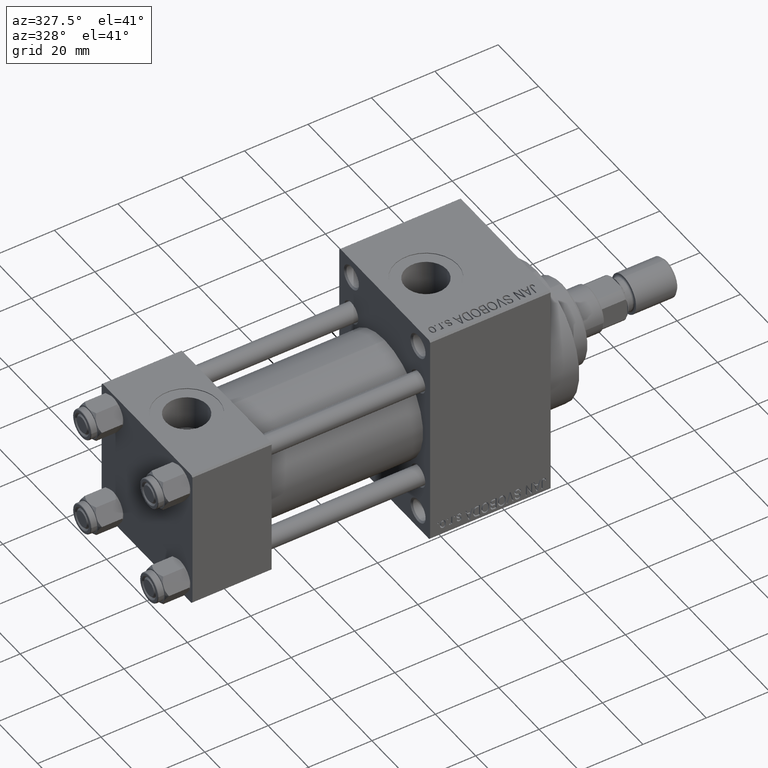
[diagram: clean part render]
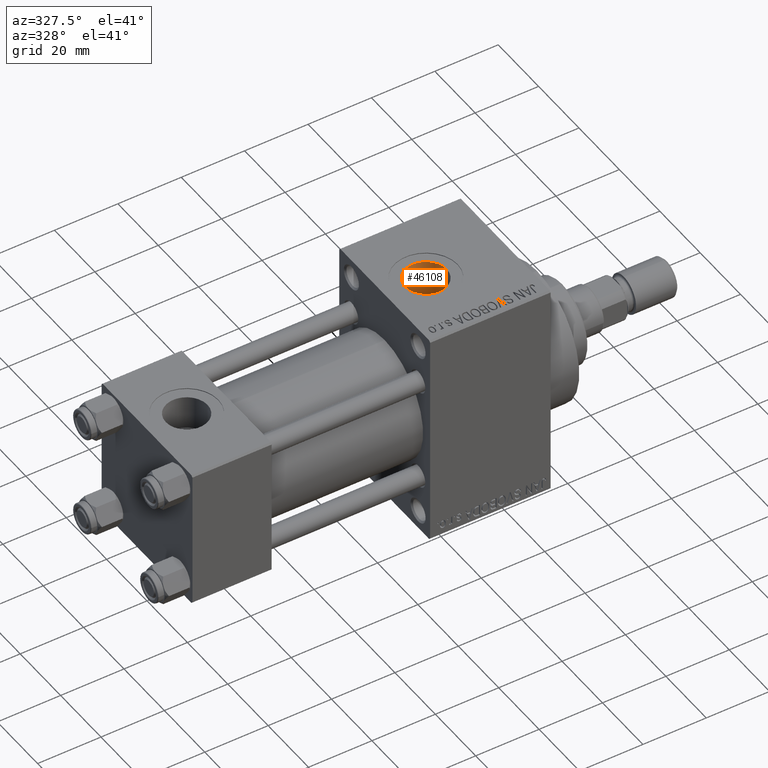
[diagram: same view with one face highlighted and labeled with its STEP entity id]
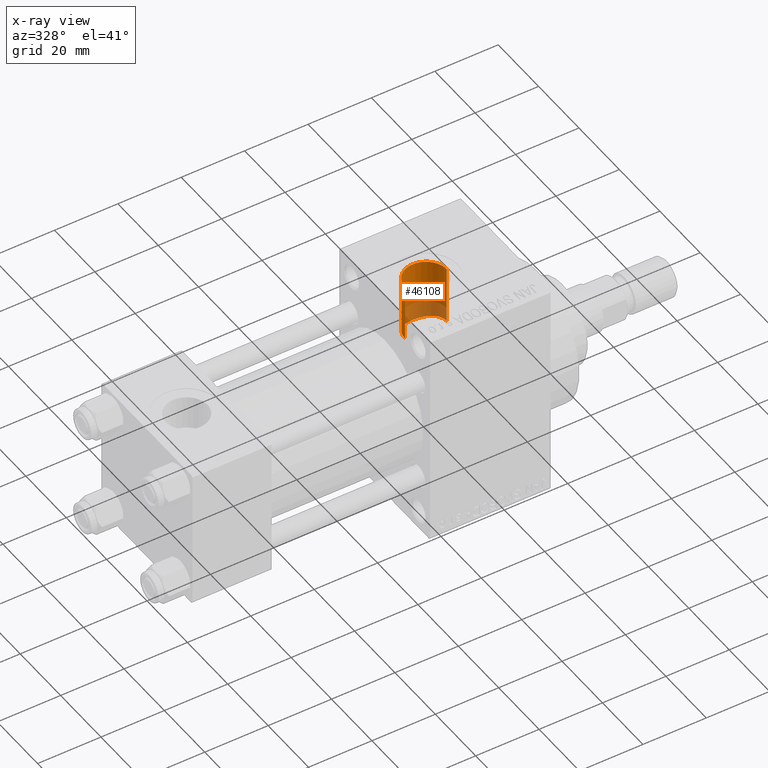
[diagram: x-ray of the same camera — body ghosted, the highlighted face saturated]
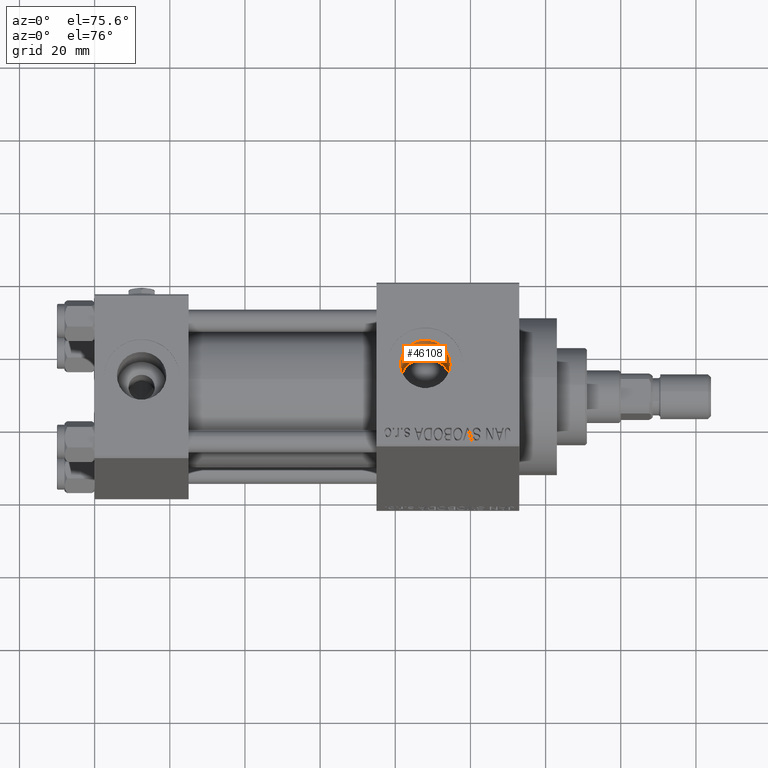
[diagram: same view with one face highlighted and labeled with its STEP entity id]
A machine part, auxiliary view. The second image highlights one B-rep face of the part: STEP entity #46108.
The next image is the same camera in x-ray: the body ghosted, the highlighted face saturated — about 25% of this face is hidden behind the body in this view.
A second angle (auxiliary view) of the same face is appended — the face is thin or edge-on in the first view.
In plain terms, the highlighted cylindrical surface (edge-blend (fillet) strip) has radius 6.58 mm, axis along (0, 0, -1).
Its self-contained STEP definition (entity closure, byte-faithful):
#144 = VERTEX_POINT ( 'NONE', #33753 ) ;
#365 = CARTESIAN_POINT ( 'NONE',  ( 81.42000000000001592, 0.4396909161633379970, 16.50000000000000000 ) ) ;
#1992 = VERTEX_POINT ( 'NONE', #39671 ) ;
#2795 = CARTESIAN_POINT ( 'NONE',  ( 89.71960907533876650, 6.366039094239791751, 15.22274969486490903 ) ) ;
#4271 = ORIENTED_EDGE ( 'NONE', *, *, #33789, .F. ) ;
#4628 = CARTESIAN_POINT ( 'NONE',  ( 86.28000513198898602, 6.354916046140965946, 15.22727006170524255 ) ) ;
#4850 = DIRECTION ( 'NONE',  ( 0.000000000000000000, 0.000000000000000000, -1.000000000000000000 ) ) ;
#4873 = CARTESIAN_POINT ( 'NONE',  ( 88.43041437636243529, 6.580262352372593604, 15.13109868636610500 ) ) ;
#7057 = CARTESIAN_POINT ( 'NONE',  ( 93.58313079595792772, 3.488679297653432876, 16.12799927511962750 ) ) ;
#7765 = CARTESIAN_POINT ( 'NONE',  ( 88.00000000000001421, 0.000000000000000000, 34.80000000000000426 ) ) ;
#8181 = B_SPLINE_CURVE_WITH_KNOTS ( 'NONE', 3,
 ( #43896, #365, #47904, #30961, #27442, #35447, #13579, #27193, #16166, #23436, #35200, #46728, #19688, #34951, #20179, #42738, #38962, #12413, #27697, #4628, #9559, #24849, #23925, #4873, #16425, #2795, #45146, #14341, #18104, #48913, #45388, #21604, #14828, #7057, #10812, #25355, #26102, #11050, #41627, #22349, #44394, #33628 ),
 .UNSPECIFIED., .F., .F.,
 ( 4, 2, 2, 2, 2, 2, 2, 2, 2, 2, 2, 2, 2, 2, 2, 2, 2, 2, 2, 2, 4 ),
 ( 3.029796803742696073E-19, 0.001299415614038050820, 0.001949123421057076446, 0.002598831228076102506, 0.003898246842114153760, 0.004547954649133188927, 0.005197662456152225829, 0.006497078070190324788, 0.007796493684228423746, 0.008446201491247494475, 0.009095909298266561735, 0.01039532491230465983, 0.01169474052634275618, 0.01299415614038085254, 0.01429357175441894889, 0.01559298736845704872, 0.01689240298249514854, 0.01754211078951420019, 0.01819181859653324837, 0.01949123421057134820, 0.02079064982460944802 ),
 .UNSPECIFIED. ) ;
#9115 = CARTESIAN_POINT ( 'NONE',  ( 81.42000000000000171, 0.000000000000000000, 57.80000000000000426 ) ) ;
#9559 = CARTESIAN_POINT ( 'NONE',  ( 86.49295679960938799, 6.408771838949050448, 15.20459785724311885 ) ) ;
#10812 = CARTESIAN_POINT ( 'NONE',  ( 93.69510396014858600, 3.302812843699986622, 16.16721237684453882 ) ) ;
#11050 = CARTESIAN_POINT ( 'NONE',  ( 94.23829621810837409, 2.136280655178052879, 16.36601737438517645 ) ) ;
#12413 = CARTESIAN_POINT ( 'NONE',  ( 85.66352933219012300, 6.154922265468560916, 15.30930375900044282 ) ) ;
#13579 = CARTESIAN_POINT ( 'NONE',  ( 81.84557439800794043, 2.337919464262820046, 16.33476696422907892 ) ) ;
#14341 = CARTESIAN_POINT ( 'NONE',  ( 90.93426117760873240, 5.905515365187742560, 15.40802478163925215 ) ) ;
#14808 = DIRECTION ( 'NONE',  ( -0.000000000000000000, -0.000000000000000000, -1.000000000000000000 ) ) ;
#14828 = CARTESIAN_POINT ( 'NONE',  ( 93.22525777298483263, 4.021991063199714667, 16.00645380239108206 ) ) ;
#16166 = CARTESIAN_POINT ( 'NONE',  ( 82.29741408318915319, 3.310696723657961194, 16.16856813124212522 ) ) ;
#16425 = CARTESIAN_POINT ( 'NONE',  ( 88.87142053474300951, 6.536370198589199099, 15.15039361366212312 ) ) ;
#17156 = ORIENTED_EDGE ( 'NONE', *, *, #20559, .T. ) ;
#17176 = AXIS2_PLACEMENT_3D ( 'NONE', #7765, #14808, #23054 ) ;
#17815 = ORIENTED_EDGE ( 'NONE', *, *, #43109, .T. ) ;
#18104 = CARTESIAN_POINT ( 'NONE',  ( 91.31070466470548297, 5.702406519910367955, 15.48534490959712429 ) ) ;
#18783 = VERTEX_POINT ( 'NONE', #27066 ) ;
#19688 = CARTESIAN_POINT ( 'NONE',  ( 83.19999324840843258, 4.505706642184206245, 15.87365912611482166 ) ) ;
#19958 = AXIS2_PLACEMENT_3D ( 'NONE', #43934, #33422, #44939 ) ;
#20179 = CARTESIAN_POINT ( 'NONE',  ( 83.98013200560863822, 5.227071208038457151, 15.65222595229757019 ) ) ;
#20559 = EDGE_CURVE ( 'NONE', #28134, #1992, #8181, .T. ) ;
#20903 = EDGE_CURVE ( 'NONE', #18783, #1992, #21305, .T. ) ;
#21305 = LINE ( 'NONE', #21792, #30483 ) ;
#21604 = CARTESIAN_POINT ( 'NONE',  ( 92.95548920767288337, 4.349814429347719447, 15.91941246497935047 ) ) ;
#21792 = CARTESIAN_POINT ( 'NONE',  ( 94.58000000000001251, 8.058175938389587461E-16, 57.80000000000000426 ) ) ;
#21897 = CYLINDRICAL_SURFACE ( 'NONE', #19958, 6.580000000000002736 ) ;
#22349 = CARTESIAN_POINT ( 'NONE',  ( 94.53720150358897456, 0.8675057294127678231, 16.48278879358383975 ) ) ;
#23054 = DIRECTION ( 'NONE',  ( 1.000000000000000000, 0.000000000000000000, 0.000000000000000000 ) ) ;
#23436 = CARTESIAN_POINT ( 'NONE',  ( 82.65576624352384272, 3.844673625914531101, 16.04686298822489121 ) ) ;
#23925 = CARTESIAN_POINT ( 'NONE',  ( 87.56160118132955006, 6.579735225464614423, 15.13132791414495237 ) ) ;
#24849 = CARTESIAN_POINT ( 'NONE',  ( 87.13155722799643854, 6.536876158988661700, 15.15017689727745775 ) ) ;
#25355 = CARTESIAN_POINT ( 'NONE',  ( 93.89888682472117409, 2.923339875303694768, 16.24011738541209127 ) ) ;
#26102 = CARTESIAN_POINT ( 'NONE',  ( 93.99096738286496588, 2.729582111438812575, 16.27388817802938803 ) ) ;
#26180 = VECTOR ( 'NONE', #4850, 1000.000000000000000 ) ;
#26642 = ORIENTED_EDGE ( 'NONE', *, *, #20903, .F. ) ;
#27066 = CARTESIAN_POINT ( 'NONE',  ( 94.58000000000001251, 8.058175938389587461E-16, 34.80000000000000426 ) ) ;
#27193 = CARTESIAN_POINT ( 'NONE',  ( 82.09476389677169550, 2.934326875531596102, 16.24197163449460390 ) ) ;
#27442 = CARTESIAN_POINT ( 'NONE',  ( 81.64416665392327843, 1.716703622698513065, 16.41178747553648520 ) ) ;
#27697 = CARTESIAN_POINT ( 'NONE',  ( 85.86569212079474767, 6.228006918448826035, 15.27961522124684812 ) ) ;
#28134 = VERTEX_POINT ( 'NONE', #49498 ) ;
#30483 = VECTOR ( 'NONE', #37070, 1000.000000000000000 ) ;
#30961 = CARTESIAN_POINT ( 'NONE',  ( 81.59120125434554893, 1.506783316627583691, 16.43243046644544592 ) ) ;
#32912 = FACE_OUTER_BOUND ( 'NONE', #42076, .T. ) ;
#33422 = DIRECTION ( 'NONE',  ( 0.000000000000000000, 0.000000000000000000, -1.000000000000000000 ) ) ;
#33628 = CARTESIAN_POINT ( 'NONE',  ( 94.58000000000001251, 2.020737417192725116E-15, 16.50000000000000000 ) ) ;
#33753 = CARTESIAN_POINT ( 'NONE',  ( 81.42000000000000171, 0.000000000000000000, 34.80000000000000426 ) ) ;
#33789 = EDGE_CURVE ( 'NONE', #144, #18783, #36367, .T. ) ;
#34951 = CARTESIAN_POINT ( 'NONE',  ( 83.65056389765582878, 4.955707238590248309, 15.74130716793964702 ) ) ;
#35200 = CARTESIAN_POINT ( 'NONE',  ( 82.78496638132548924, 4.018153506672688557, 16.00417330379773162 ) ) ;
#35447 = CARTESIAN_POINT ( 'NONE',  ( 81.77138095783163863, 2.132602559977975432, 16.36294123290607772 ) ) ;
#35680 = LINE ( 'NONE', #9115, #26180 ) ;
#36367 = CIRCLE ( 'NONE', #17176, 6.580000000000002736 ) ;
#37070 = DIRECTION ( 'NONE',  ( 0.000000000000000000, 0.000000000000000000, -1.000000000000000000 ) ) ;
#38962 = CARTESIAN_POINT ( 'NONE',  ( 85.07125288528884255, 5.907782446913346419, 15.40712514641083608 ) ) ;
#39671 = CARTESIAN_POINT ( 'NONE',  ( 94.58000000000001251, 2.020737417192725116E-15, 16.50000000000000000 ) ) ;
#41627 = CARTESIAN_POINT ( 'NONE',  ( 94.36494523780027066, 1.724830950816363284, 16.41523227967130438 ) ) ;
#42076 = EDGE_LOOP ( 'NONE', ( #26642, #4271, #17815, #17156 ) ) ;
#42738 = CARTESIAN_POINT ( 'NONE',  ( 84.69521498421420347, 5.706137757334127869, 15.48400602460513120 ) ) ;
#43109 = EDGE_CURVE ( 'NONE', #144, #28134, #35680, .T. ) ;
#43896 = CARTESIAN_POINT ( 'NONE',  ( 81.42000000000000171, 3.122157712485941957E-16, 16.50000000000000000 ) ) ;
#43934 = CARTESIAN_POINT ( 'NONE',  ( 88.00000000000001421, 0.000000000000000000, 57.80000000000000426 ) ) ;
#44394 = CARTESIAN_POINT ( 'NONE',  ( 94.58000000000006935, 0.4330700708914970720, 16.50000000000001066 ) ) ;
#44939 = DIRECTION ( 'NONE',  ( -1.000000000000000000, 0.000000000000000000, 0.000000000000000000 ) ) ;
#45146 = CARTESIAN_POINT ( 'NONE',  ( 90.13265887571023427, 6.239933213324053263, 15.27565294490985259 ) ) ;
#45388 = CARTESIAN_POINT ( 'NONE',  ( 92.35344972158691235, 4.952295869466896150, 15.74240592861086974 ) ) ;
#46108 = ADVANCED_FACE ( 'NONE', ( #32912 ), #21897, .F. ) ;
#46728 = CARTESIAN_POINT ( 'NONE',  ( 83.05688031090234347, 4.348298631228813882, 15.91764491860626229 ) ) ;
#47904 = CARTESIAN_POINT ( 'NONE',  ( 81.46362139189338336, 0.8711739170587056158, 16.48246716961885028 ) ) ;
#48913 = CARTESIAN_POINT ( 'NONE',  ( 92.01896304314374220, 5.227441205127388635, 15.65206713295206065 ) ) ;
#49498 = CARTESIAN_POINT ( 'NONE',  ( 81.42000000000000171, 3.122157712485941957E-16, 16.50000000000000000 ) ) ;